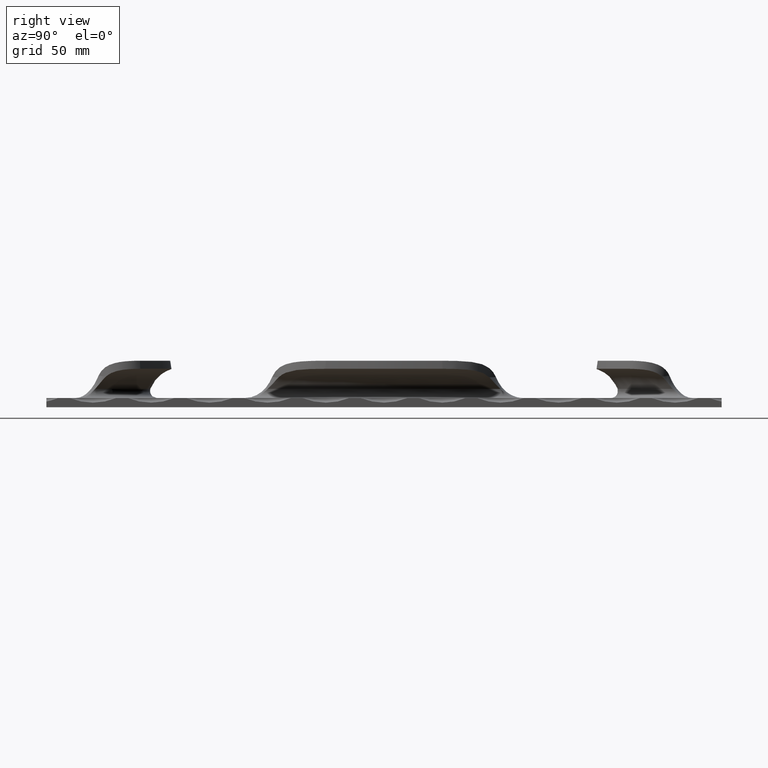
[diagram: clean part render]
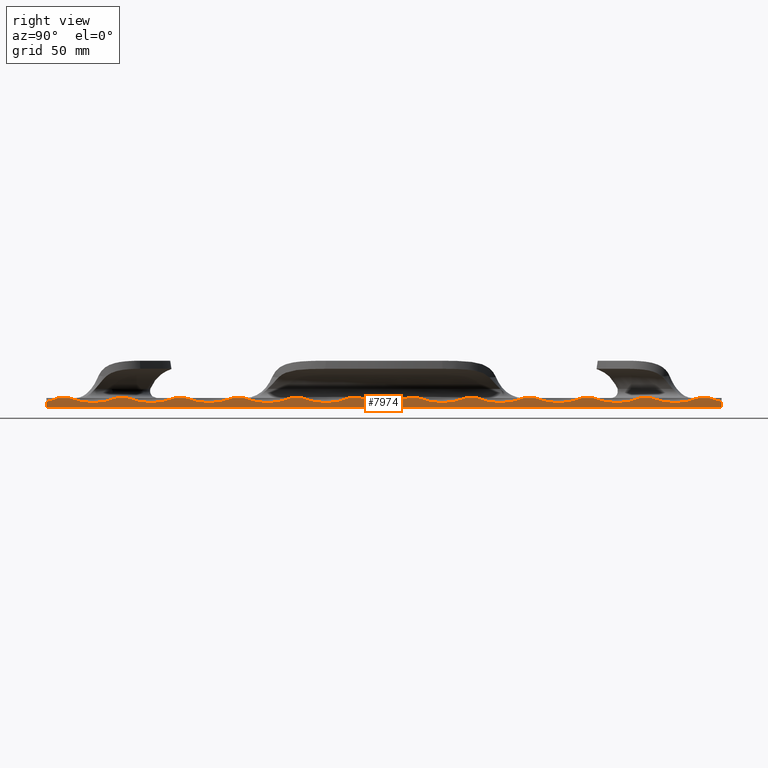
[diagram: same view with one face highlighted and labeled with its STEP entity id]
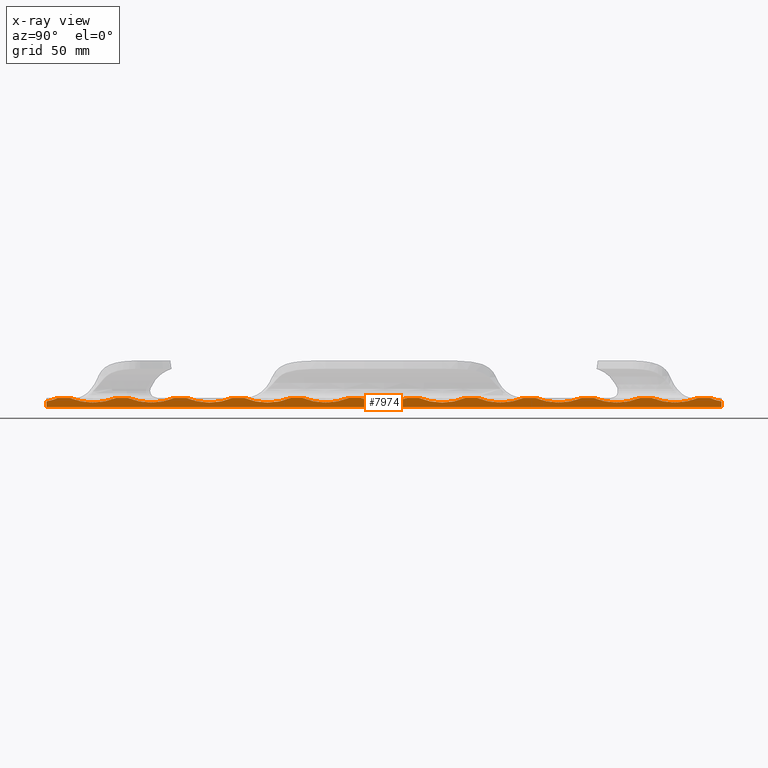
[diagram: x-ray of the same camera — body ghosted, the highlighted face saturated]
A machine part, right view. The second image highlights one B-rep face of the part: STEP entity #7974.
The next image is the same camera in x-ray: the body ghosted, the highlighted face saturated — about 0% of this face is hidden behind the body in this view.
In plain terms, the highlighted planar face has unit normal (-1, 0, 0).
Its self-contained STEP definition (entity closure, byte-faithful):
#66 = CARTESIAN_POINT ( 'NONE',  ( 0.0000000000000000000, 0.0000000000000000000, 4.000000000000000000 ) ) ;
#123 = DIRECTION ( 'NONE',  ( 0.0000000000000000000, 0.0000000000000000000, 1.000000000000000000 ) ) ;
#210 = VERTEX_POINT ( 'NONE', #17794 ) ;
#232 = LINE ( 'NONE', #14761, #15217 ) ;
#246 = VECTOR ( 'NONE', #15809, 1000.000000000000000 ) ;
#351 = EDGE_CURVE ( 'NONE', #9759, #12114, #5989, .T. ) ;
#418 = CIRCLE ( 'NONE', #16070, 26.00000000000005000 ) ;
#542 = VERTEX_POINT ( 'NONE', #9683 ) ;
#562 = ORIENTED_EDGE ( 'NONE', *, *, #5883, .F. ) ;
#576 = ORIENTED_EDGE ( 'NONE', *, *, #3695, .F. ) ;
#801 = CARTESIAN_POINT ( 'NONE',  ( 4.443853369587907000E-015, 220.0000000000001400, 28.00000000000005300 ) ) ;
#809 = DIRECTION ( 'NONE',  ( -0.0000000000000000000, -0.0000000000000000000, -1.000000000000000000 ) ) ;
#817 = EDGE_CURVE ( 'NONE', #15882, #9537, #6652, .T. ) ;
#877 = AXIS2_PLACEMENT_3D ( 'NONE', #1599, #1415, #11608 ) ;
#893 = DIRECTION ( 'NONE',  ( -0.0000000000000000000, -0.0000000000000000000, -1.000000000000000000 ) ) ;
#897 = CIRCLE ( 'NONE', #5221, 26.00000000000005000 ) ;
#941 = DIRECTION ( 'NONE',  ( 0.0000000000000000000, 1.000000000000000000, 0.0000000000000000000 ) ) ;
#1137 = VECTOR ( 'NONE', #18411, 1000.000000000000000 ) ;
#1169 = DIRECTION ( 'NONE',  ( 1.000000000000000000, -0.0000000000000000000, -0.0000000000000000000 ) ) ;
#1263 = EDGE_CURVE ( 'NONE', #12179, #11908, #10569, .T. ) ;
#1387 = CARTESIAN_POINT ( 'NONE',  ( 6.938893903907228400E-015, 135.0000000000001100, 4.000000000000000000 ) ) ;
#1415 = DIRECTION ( 'NONE',  ( 1.000000000000000000, -0.0000000000000000000, -0.0000000000000000000 ) ) ;
#1540 = EDGE_CURVE ( 'NONE', #542, #13307, #10785, .T. ) ;
#1599 = CARTESIAN_POINT ( 'NONE',  ( 5.139921410301704000E-016, 20.00000000000012800, 28.00000000000005300 ) ) ;
#1646 = LINE ( 'NONE', #6231, #8515 ) ;
#1949 = VERTEX_POINT ( 'NONE', #2261 ) ;
#1960 = EDGE_CURVE ( 'NONE', #12114, #6623, #10998, .T. ) ;
#2169 = ORIENTED_EDGE ( 'NONE', *, *, #12651, .F. ) ;
#2230 = AXIS2_PLACEMENT_3D ( 'NONE', #15690, #2699, #4328 ) ;
#2261 = CARTESIAN_POINT ( 'NONE',  ( 5.275533547694347400E-015, 185.0000000000001100, 4.000000000000000000 ) ) ;
#2284 = EDGE_LOOP ( 'NONE', ( #11218, #16465, #14607, #562, #2169, #3142, #576, #8809, #15996, #6924, #12406, #12682, #11199, #10488, #16335, #13591, #3105, #2355, #4465, #11049, #15301, #15536, #17819, #15413, #13994, #13771, #11913, #4958 ) ) ;
#2355 = ORIENTED_EDGE ( 'NONE', *, *, #1263, .F. ) ;
#2410 = DIRECTION ( 'NONE',  ( 0.0000000000000000000, 2.135044278125297000E-015, 1.000000000000000000 ) ) ;
#2461 = CARTESIAN_POINT ( 'NONE',  ( 0.0000000000000000000, 0.0000000000000000000, 4.000000000000000000 ) ) ;
#2492 = CARTESIAN_POINT ( 'NONE',  ( 1.948812835268585500E-015, 295.0000000000001700, 28.00000000000005300 ) ) ;
#2561 = CARTESIAN_POINT ( 'NONE',  ( 0.0000000000000000000, 0.0000000000000000000, 4.000000000000000000 ) ) ;
#2593 = AXIS2_PLACEMENT_3D ( 'NONE', #801, #6759, #12566 ) ;
#2699 = DIRECTION ( 'NONE',  ( 1.000000000000000000, -0.0000000000000000000, -0.0000000000000000000 ) ) ;
#2723 = DIRECTION ( 'NONE',  ( 1.000000000000000000, -0.0000000000000000000, -0.0000000000000000000 ) ) ;
#2767 = CIRCLE ( 'NONE', #13141, 26.00000000000005000 ) ;
#2919 = CARTESIAN_POINT ( 'NONE',  ( 5.653913551331817100E-015, 120.0000000000001300, 28.00000000000005300 ) ) ;
#2949 = PLANE ( 'NONE',  #9888 ) ;
#3105 = ORIENTED_EDGE ( 'NONE', *, *, #7780, .F. ) ;
#3142 = ORIENTED_EDGE ( 'NONE', *, *, #9372, .F. ) ;
#3199 = EDGE_CURVE ( 'NONE', #3885, #6304, #232, .T. ) ;
#3245 = CIRCLE ( 'NONE', #17422, 26.00000000000005000 ) ;
#3362 = CARTESIAN_POINT ( 'NONE',  ( -7.709882115452418000E-016, 0.0000000000000000000, 2.485298355653833300 ) ) ;
#3509 = CARTESIAN_POINT ( 'NONE',  ( 3.659392783668341200E-015, 180.0000000000001400, 4.000000000000000000 ) ) ;
#3679 = VECTOR ( 'NONE', #5849, 1000.000000000000000 ) ;
#3695 = EDGE_CURVE ( 'NONE', #210, #14132, #6176, .T. ) ;
#3815 = CARTESIAN_POINT ( 'NONE',  ( 3.612173191481467300E-015, 235.0000000000001100, 4.000000000000000000 ) ) ;
#3885 = VERTEX_POINT ( 'NONE', #9192 ) ;
#3902 = CARTESIAN_POINT ( 'NONE',  ( 4.491072961774781700E-015, 155.0000000000001400, 4.000000000000000000 ) ) ;
#3909 = DIRECTION ( 'NONE',  ( 0.0000000000000000000, 1.601283208593972700E-015, 1.000000000000000000 ) ) ;
#3976 = VECTOR ( 'NONE', #8953, 1000.000000000000000 ) ;
#4118 = VECTOR ( 'NONE', #893, 1000.000000000000000 ) ;
#4309 = CARTESIAN_POINT ( 'NONE',  ( 0.0000000000000000000, 0.0000000000000000000, 4.000000000000000000 ) ) ;
#4328 = DIRECTION ( 'NONE',  ( 0.0000000000000000000, 0.0000000000000000000, 1.000000000000000000 ) ) ;
#4463 = VECTOR ( 'NONE', #809, 1000.000000000000000 ) ;
#4465 = ORIENTED_EDGE ( 'NONE', *, *, #13593, .F. ) ;
#4533 = CARTESIAN_POINT ( 'NONE',  ( 6.361319040485467700E-016, 80.00000000000012800, 4.000000000000000000 ) ) ;
#4723 = DIRECTION ( 'NONE',  ( 0.0000000000000000000, 1.000000000000000000, 0.0000000000000000000 ) ) ;
#4751 = EDGE_CURVE ( 'NONE', #9537, #3885, #14052, .T. ) ;
#4958 = ORIENTED_EDGE ( 'NONE', *, *, #11105, .F. ) ;
#5074 = LINE ( 'NONE', #2561, #7792 ) ;
#5221 = AXIS2_PLACEMENT_3D ( 'NONE', #6703, #6826, #15547 ) ;
#5241 = EDGE_CURVE ( 'NONE', #17115, #15882, #14282, .T. ) ;
#5362 = CARTESIAN_POINT ( 'NONE',  ( 1.996032427455460700E-015, 230.0000000000001400, 4.000000000000000000 ) ) ;
#5599 = CARTESIAN_POINT ( 'NONE',  ( 0.0000000000000000000, 290.0000000000002800, 2.485298355653833300 ) ) ;
#5600 = DIRECTION ( 'NONE',  ( 0.0000000000000000000, 1.868163743359634800E-015, 1.000000000000000000 ) ) ;
#5669 = LINE ( 'NONE', #66, #12908 ) ;
#5849 = DIRECTION ( 'NONE',  ( 0.0000000000000000000, 1.000000000000000000, 0.0000000000000000000 ) ) ;
#5883 = EDGE_CURVE ( 'NONE', #15116, #17764, #18501, .T. ) ;
#5893 = VERTEX_POINT ( 'NONE', #3815 ) ;
#5989 = LINE ( 'NONE', #7579, #3976 ) ;
#5992 = VECTOR ( 'NONE', #17397, 1000.000000000000000 ) ;
#6171 = CARTESIAN_POINT ( 'NONE',  ( 1.164352249349020600E-015, 255.0000000000001100, 4.000000000000000000 ) ) ;
#6176 = CIRCLE ( 'NONE', #2230, 26.00000000000005000 ) ;
#6188 = DIRECTION ( 'NONE',  ( 0.0000000000000000000, 1.000000000000000000, 0.0000000000000000000 ) ) ;
#6231 = CARTESIAN_POINT ( 'NONE',  ( 0.0000000000000000000, 0.0000000000000000000, 4.000000000000000000 ) ) ;
#6242 = DIRECTION ( 'NONE',  ( 1.000000000000000000, -0.0000000000000000000, -0.0000000000000000000 ) ) ;
#6301 = CARTESIAN_POINT ( 'NONE',  ( 4.368933198756405700E-015, 85.00000000000011400, 4.000000000000000000 ) ) ;
#6304 = VERTEX_POINT ( 'NONE', #16288 ) ;
#6484 = CARTESIAN_POINT ( 'NONE',  ( 5.653913551331817100E-015, 110.0000000000001300, 4.000000000000000000 ) ) ;
#6589 = LINE ( 'NONE', #14963, #15874 ) ;
#6623 = VERTEX_POINT ( 'NONE', #14373 ) ;
#6652 = LINE ( 'NONE', #18260, #10981 ) ;
#6661 = CIRCLE ( 'NONE', #10415, 26.00000000000005000 ) ;
#6684 = DIRECTION ( 'NONE',  ( 1.000000000000000000, -0.0000000000000000000, -0.0000000000000000000 ) ) ;
#6703 = CARTESIAN_POINT ( 'NONE',  ( 6.938893903907228400E-015, 145.0000000000001400, 28.00000000000005300 ) ) ;
#6759 = DIRECTION ( 'NONE',  ( 1.000000000000000000, -0.0000000000000000000, -0.0000000000000000000 ) ) ;
#6826 = DIRECTION ( 'NONE',  ( 1.000000000000000000, -0.0000000000000000000, -0.0000000000000000000 ) ) ;
#6923 = EDGE_CURVE ( 'NONE', #14431, #542, #11880, .T. ) ;
#6924 = ORIENTED_EDGE ( 'NONE', *, *, #16758, .F. ) ;
#7125 = CARTESIAN_POINT ( 'NONE',  ( 5.275533547694347400E-015, 195.0000000000001100, 28.00000000000005300 ) ) ;
#7137 = VERTEX_POINT ( 'NONE', #6171 ) ;
#7142 = EDGE_CURVE ( 'NONE', #15435, #13063, #13425, .T. ) ;
#7175 = DIRECTION ( 'NONE',  ( 0.0000000000000000000, 0.0000000000000000000, 1.000000000000000000 ) ) ;
#7427 = EDGE_CURVE ( 'NONE', #5893, #7137, #18681, .T. ) ;
#7579 = CARTESIAN_POINT ( 'NONE',  ( 0.0000000000000000000, 0.0000000000000000000, 4.000000000000000000 ) ) ;
#7762 = DIRECTION ( 'NONE',  ( 0.0000000000000000000, 1.000000000000000000, 0.0000000000000000000 ) ) ;
#7772 = CARTESIAN_POINT ( 'NONE',  ( 0.0000000000000000000, 0.0000000000000000000, 4.000000000000000000 ) ) ;
#7780 = EDGE_CURVE ( 'NONE', #11908, #10077, #897, .T. ) ;
#7792 = VECTOR ( 'NONE', #6188, 1000.000000000000000 ) ;
#7845 = CARTESIAN_POINT ( 'NONE',  ( 3.612173191481467300E-015, 245.0000000000001400, 28.00000000000005300 ) ) ;
#7974 = ADVANCED_FACE ( 'NONE', ( #12063 ), #2949, .F. ) ;
#8473 = LINE ( 'NONE', #2461, #1137 ) ;
#8515 = VECTOR ( 'NONE', #4723, 1000.000000000000000 ) ;
#8627 = DIRECTION ( 'NONE',  ( 0.0000000000000000000, 1.000000000000000000, 0.0000000000000000000 ) ) ;
#8809 = ORIENTED_EDGE ( 'NONE', *, *, #13367, .F. ) ;
#8953 = DIRECTION ( 'NONE',  ( 0.0000000000000000000, 1.000000000000000000, 0.0000000000000000000 ) ) ;
#9182 = CARTESIAN_POINT ( 'NONE',  ( -3.218809153677688200E-015, 5.000000000000115500, 4.000000000000000000 ) ) ;
#9190 = AXIS2_PLACEMENT_3D ( 'NONE', #2919, #1169, #7175 ) ;
#9192 = CARTESIAN_POINT ( 'NONE',  ( -6.488484485268646400E-016, 55.00000000000013500, 4.000000000000000000 ) ) ;
#9372 = EDGE_CURVE ( 'NONE', #14132, #16094, #12025, .T. ) ;
#9400 = DIRECTION ( 'NONE',  ( 0.0000000000000000000, 1.000000000000000000, 0.0000000000000000000 ) ) ;
#9412 = CARTESIAN_POINT ( 'NONE',  ( 5.139921410301704000E-016, 10.00000000000012100, 4.000000000000000000 ) ) ;
#9537 = VERTEX_POINT ( 'NONE', #10773 ) ;
#9683 = CARTESIAN_POINT ( 'NONE',  ( 4.443853369587907000E-015, 210.0000000000001400, 4.000000000000000000 ) ) ;
#9759 = VERTEX_POINT ( 'NONE', #4533 ) ;
#9771 = CARTESIAN_POINT ( 'NONE',  ( 0.0000000000000000000, 0.0000000000000000000, 4.000000000000000000 ) ) ;
#9880 = VERTEX_POINT ( 'NONE', #18076 ) ;
#9888 = AXIS2_PLACEMENT_3D ( 'NONE', #7772, #16065, #123 ) ;
#9963 = VERTEX_POINT ( 'NONE', #3509 ) ;
#10068 = DIRECTION ( 'NONE',  ( 0.0000000000000000000, 0.0000000000000000000, 1.000000000000000000 ) ) ;
#10077 = VERTEX_POINT ( 'NONE', #3902 ) ;
#10216 = CARTESIAN_POINT ( 'NONE',  ( 3.326720712425802800E-016, 280.0000000000001100, 4.000000000000000000 ) ) ;
#10389 = EDGE_CURVE ( 'NONE', #6304, #9759, #418, .T. ) ;
#10415 = AXIS2_PLACEMENT_3D ( 'NONE', #13093, #14672, #13278 ) ;
#10449 = CARTESIAN_POINT ( 'NONE',  ( 3.206092609199370400E-015, 130.0000000000001400, 4.000000000000000000 ) ) ;
#10488 = ORIENTED_EDGE ( 'NONE', *, *, #17649, .F. ) ;
#10569 = LINE ( 'NONE', #11523, #13903 ) ;
#10773 = CARTESIAN_POINT ( 'NONE',  ( 1.798972493605581900E-015, 35.00000000000011400, 4.000000000000000000 ) ) ;
#10774 = EDGE_CURVE ( 'NONE', #15435, #15361, #17026, .T. ) ;
#10782 = DIRECTION ( 'NONE',  ( 0.0000000000000000000, 1.601283208593972700E-015, 1.000000000000000000 ) ) ;
#10785 = CIRCLE ( 'NONE', #2593, 26.00000000000005000 ) ;
#10925 = CARTESIAN_POINT ( 'NONE',  ( 0.0000000000000000000, 0.0000000000000000000, 4.000000000000000000 ) ) ;
#10959 = CARTESIAN_POINT ( 'NONE',  ( 3.083952846180993200E-015, 70.00000000000011400, 28.00000000000005300 ) ) ;
#10981 = VECTOR ( 'NONE', #9400, 1000.000000000000000 ) ;
#10998 = CIRCLE ( 'NONE', #14243, 26.00000000000005000 ) ;
#11049 = ORIENTED_EDGE ( 'NONE', *, *, #17675, .F. ) ;
#11097 = DIRECTION ( 'NONE',  ( 1.000000000000000000, -0.0000000000000000000, -0.0000000000000000000 ) ) ;
#11105 = EDGE_CURVE ( 'NONE', #13063, #17115, #5669, .T. ) ;
#11199 = ORIENTED_EDGE ( 'NONE', *, *, #17988, .F. ) ;
#11218 = ORIENTED_EDGE ( 'NONE', *, *, #7142, .F. ) ;
#11523 = CARTESIAN_POINT ( 'NONE',  ( 0.0000000000000000000, 0.0000000000000000000, 4.000000000000000000 ) ) ;
#11601 = VECTOR ( 'NONE', #941, 1000.000000000000000 ) ;
#11608 = DIRECTION ( 'NONE',  ( 0.0000000000000000000, 1.734723475976803700E-015, 1.000000000000000000 ) ) ;
#11803 = CARTESIAN_POINT ( 'NONE',  ( 0.0000000000000000000, 0.0000000000000000000, 0.0000000000000000000 ) ) ;
#11836 = LINE ( 'NONE', #14447, #3679 ) ;
#11880 = LINE ( 'NONE', #17079, #5992 ) ;
#11908 = VERTEX_POINT ( 'NONE', #1387 ) ;
#11913 = ORIENTED_EDGE ( 'NONE', *, *, #5241, .F. ) ;
#11966 = CARTESIAN_POINT ( 'NONE',  ( 3.174932290578200000E-015, 285.0000000000001100, 4.000000000000000000 ) ) ;
#12025 = LINE ( 'NONE', #9771, #11601 ) ;
#12063 = FACE_OUTER_BOUND ( 'NONE', #2284, .T. ) ;
#12114 = VERTEX_POINT ( 'NONE', #6301 ) ;
#12179 = VERTEX_POINT ( 'NONE', #10449 ) ;
#12406 = ORIENTED_EDGE ( 'NONE', *, *, #1540, .F. ) ;
#12469 = EDGE_CURVE ( 'NONE', #9880, #9963, #6661, .T. ) ;
#12476 = DIRECTION ( 'NONE',  ( 1.000000000000000000, -0.0000000000000000000, -0.0000000000000000000 ) ) ;
#12566 = DIRECTION ( 'NONE',  ( 0.0000000000000000000, 0.0000000000000000000, 1.000000000000000000 ) ) ;
#12605 = AXIS2_PLACEMENT_3D ( 'NONE', #7845, #6684, #2410 ) ;
#12651 = EDGE_CURVE ( 'NONE', #16094, #15116, #3245, .T. ) ;
#12682 = ORIENTED_EDGE ( 'NONE', *, *, #6923, .F. ) ;
#12757 = DIRECTION ( 'NONE',  ( 0.0000000000000000000, 0.0000000000000000000, 1.000000000000000000 ) ) ;
#12908 = VECTOR ( 'NONE', #17644, 1000.000000000000000 ) ;
#13063 = VERTEX_POINT ( 'NONE', #9182 ) ;
#13093 = CARTESIAN_POINT ( 'NONE',  ( 6.107213725800787900E-015, 170.0000000000001100, 28.00000000000005300 ) ) ;
#13141 = AXIS2_PLACEMENT_3D ( 'NONE', #7125, #17270, #10068 ) ;
#13278 = DIRECTION ( 'NONE',  ( 0.0000000000000000000, 0.0000000000000000000, 1.000000000000000000 ) ) ;
#13307 = VERTEX_POINT ( 'NONE', #5362 ) ;
#13367 = EDGE_CURVE ( 'NONE', #7137, #210, #8473, .T. ) ;
#13425 = CIRCLE ( 'NONE', #14301, 26.00000000000005000 ) ;
#13565 = DIRECTION ( 'NONE',  ( 1.000000000000000000, -0.0000000000000000000, -0.0000000000000000000 ) ) ;
#13591 = ORIENTED_EDGE ( 'NONE', *, *, #15383, .F. ) ;
#13593 = EDGE_CURVE ( 'NONE', #18233, #12179, #17551, .T. ) ;
#13694 = CARTESIAN_POINT ( 'NONE',  ( 2.827712605561901200E-015, 205.0000000000001100, 4.000000000000000000 ) ) ;
#13771 = ORIENTED_EDGE ( 'NONE', *, *, #817, .F. ) ;
#13903 = VECTOR ( 'NONE', #8627, 1000.000000000000000 ) ;
#13994 = ORIENTED_EDGE ( 'NONE', *, *, #4751, .F. ) ;
#14052 = CIRCLE ( 'NONE', #18071, 26.00000000000005000 ) ;
#14132 = VERTEX_POINT ( 'NONE', #10216 ) ;
#14243 = AXIS2_PLACEMENT_3D ( 'NONE', #18341, #12476, #3909 ) ;
#14282 = CIRCLE ( 'NONE', #877, 26.00000000000005000 ) ;
#14301 = AXIS2_PLACEMENT_3D ( 'NONE', #17817, #6242, #14827 ) ;
#14373 = CARTESIAN_POINT ( 'NONE',  ( 1.921112256623958700E-015, 105.0000000000001300, 4.000000000000000000 ) ) ;
#14431 = VERTEX_POINT ( 'NONE', #13694 ) ;
#14447 = CARTESIAN_POINT ( 'NONE',  ( 0.0000000000000000000, 0.0000000000000000000, 4.000000000000000000 ) ) ;
#14607 = ORIENTED_EDGE ( 'NONE', *, *, #16619, .T. ) ;
#14672 = DIRECTION ( 'NONE',  ( 1.000000000000000000, -0.0000000000000000000, -0.0000000000000000000 ) ) ;
#14761 = CARTESIAN_POINT ( 'NONE',  ( 0.0000000000000000000, 0.0000000000000000000, 4.000000000000000000 ) ) ;
#14784 = CARTESIAN_POINT ( 'NONE',  ( 0.0000000000000000000, 290.0000000000002800, 0.0000000000000000000 ) ) ;
#14827 = DIRECTION ( 'NONE',  ( 0.0000000000000000000, 0.0000000000000000000, 1.000000000000000000 ) ) ;
#14884 = DIRECTION ( 'NONE',  ( 0.0000000000000000000, 1.000000000000000000, 0.0000000000000000000 ) ) ;
#14963 = CARTESIAN_POINT ( 'NONE',  ( 0.0000000000000000000, 0.0000000000000000000, 0.0000000000000000000 ) ) ;
#15116 = VERTEX_POINT ( 'NONE', #5599 ) ;
#15217 = VECTOR ( 'NONE', #14884, 1000.000000000000000 ) ;
#15301 = ORIENTED_EDGE ( 'NONE', *, *, #1960, .F. ) ;
#15361 = VERTEX_POINT ( 'NONE', #11803 ) ;
#15383 = EDGE_CURVE ( 'NONE', #10077, #9880, #11836, .T. ) ;
#15413 = ORIENTED_EDGE ( 'NONE', *, *, #3199, .F. ) ;
#15435 = VERTEX_POINT ( 'NONE', #3362 ) ;
#15536 = ORIENTED_EDGE ( 'NONE', *, *, #351, .F. ) ;
#15547 = DIRECTION ( 'NONE',  ( 0.0000000000000000000, 0.0000000000000000000, 1.000000000000000000 ) ) ;
#15690 = CARTESIAN_POINT ( 'NONE',  ( 2.780493013375026800E-015, 270.0000000000001100, 28.00000000000005300 ) ) ;
#15809 = DIRECTION ( 'NONE',  ( 0.0000000000000000000, 1.000000000000000000, 0.0000000000000000000 ) ) ;
#15874 = VECTOR ( 'NONE', #7762, 1000.000000000000000 ) ;
#15882 = VERTEX_POINT ( 'NONE', #18582 ) ;
#15996 = ORIENTED_EDGE ( 'NONE', *, *, #7427, .F. ) ;
#16065 = DIRECTION ( 'NONE',  ( -1.000000000000000000, 0.0000000000000000000, 0.0000000000000000000 ) ) ;
#16070 = AXIS2_PLACEMENT_3D ( 'NONE', #10959, #13565, #10782 ) ;
#16094 = VERTEX_POINT ( 'NONE', #11966 ) ;
#16162 = LINE ( 'NONE', #4309, #246 ) ;
#16288 = CARTESIAN_POINT ( 'NONE',  ( 3.083952846180993200E-015, 60.00000000000010700, 4.000000000000000000 ) ) ;
#16335 = ORIENTED_EDGE ( 'NONE', *, *, #12469, .F. ) ;
#16465 = ORIENTED_EDGE ( 'NONE', *, *, #10774, .T. ) ;
#16619 = EDGE_CURVE ( 'NONE', #15361, #17764, #6589, .T. ) ;
#16758 = EDGE_CURVE ( 'NONE', #13307, #5893, #1646, .T. ) ;
#17026 = LINE ( 'NONE', #10925, #4118 ) ;
#17079 = CARTESIAN_POINT ( 'NONE',  ( 0.0000000000000000000, 0.0000000000000000000, 4.000000000000000000 ) ) ;
#17115 = VERTEX_POINT ( 'NONE', #9412 ) ;
#17270 = DIRECTION ( 'NONE',  ( 1.000000000000000000, -0.0000000000000000000, -0.0000000000000000000 ) ) ;
#17388 = CARTESIAN_POINT ( 'NONE',  ( 1.798972493605581900E-015, 45.00000000000012100, 28.00000000000005300 ) ) ;
#17397 = DIRECTION ( 'NONE',  ( 0.0000000000000000000, 1.000000000000000000, 0.0000000000000000000 ) ) ;
#17422 = AXIS2_PLACEMENT_3D ( 'NONE', #2492, #11097, #12757 ) ;
#17551 = CIRCLE ( 'NONE', #9190, 26.00000000000005000 ) ;
#17644 = DIRECTION ( 'NONE',  ( 0.0000000000000000000, 1.000000000000000000, 0.0000000000000000000 ) ) ;
#17649 = EDGE_CURVE ( 'NONE', #9963, #1949, #16162, .T. ) ;
#17675 = EDGE_CURVE ( 'NONE', #6623, #18233, #5074, .T. ) ;
#17764 = VERTEX_POINT ( 'NONE', #14784 ) ;
#17794 = CARTESIAN_POINT ( 'NONE',  ( 2.780493013375026800E-015, 260.0000000000001100, 4.000000000000000000 ) ) ;
#17817 = CARTESIAN_POINT ( 'NONE',  ( -7.709882115452418000E-016, -4.999999999999893400, 28.00000000000005300 ) ) ;
#17819 = ORIENTED_EDGE ( 'NONE', *, *, #10389, .F. ) ;
#17988 = EDGE_CURVE ( 'NONE', #1949, #14431, #2767, .T. ) ;
#18071 = AXIS2_PLACEMENT_3D ( 'NONE', #17388, #2723, #5600 ) ;
#18076 = CARTESIAN_POINT ( 'NONE',  ( 6.107213725800787900E-015, 160.0000000000001100, 4.000000000000000000 ) ) ;
#18233 = VERTEX_POINT ( 'NONE', #6484 ) ;
#18250 = CARTESIAN_POINT ( 'NONE',  ( 0.0000000000000000000, 290.0000000000002800, 4.000000000000000000 ) ) ;
#18260 = CARTESIAN_POINT ( 'NONE',  ( 0.0000000000000000000, 0.0000000000000000000, 4.000000000000000000 ) ) ;
#18341 = CARTESIAN_POINT ( 'NONE',  ( 4.368933198756405700E-015, 95.00000000000012800, 28.00000000000005300 ) ) ;
#18411 = DIRECTION ( 'NONE',  ( 0.0000000000000000000, 1.000000000000000000, 0.0000000000000000000 ) ) ;
#18501 = LINE ( 'NONE', #18250, #4463 ) ;
#18582 = CARTESIAN_POINT ( 'NONE',  ( -1.933828801102276100E-015, 30.00000000000013900, 4.000000000000000000 ) ) ;
#18681 = CIRCLE ( 'NONE', #12605, 26.00000000000005000 ) ;